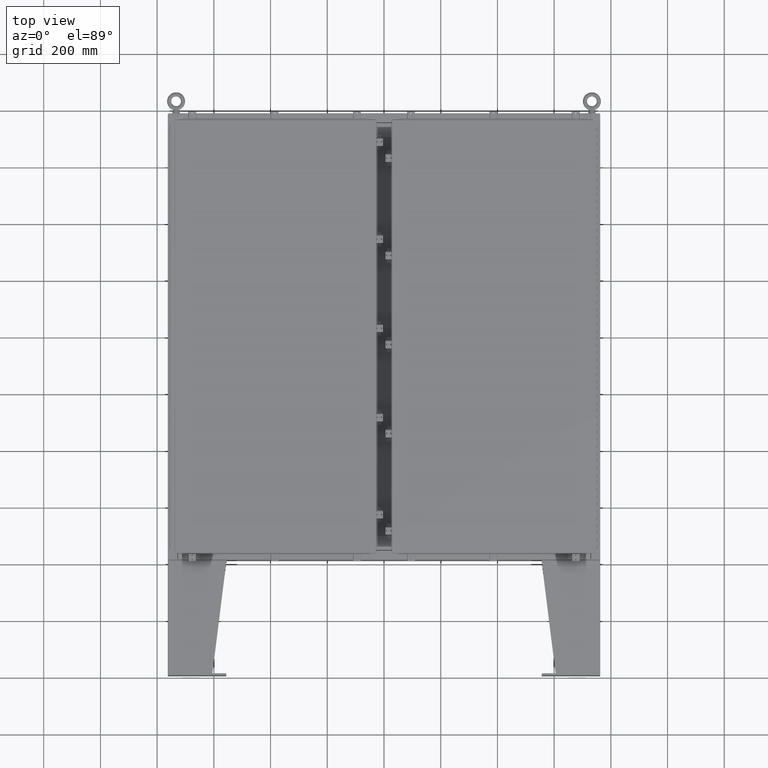
[diagram: clean part render]
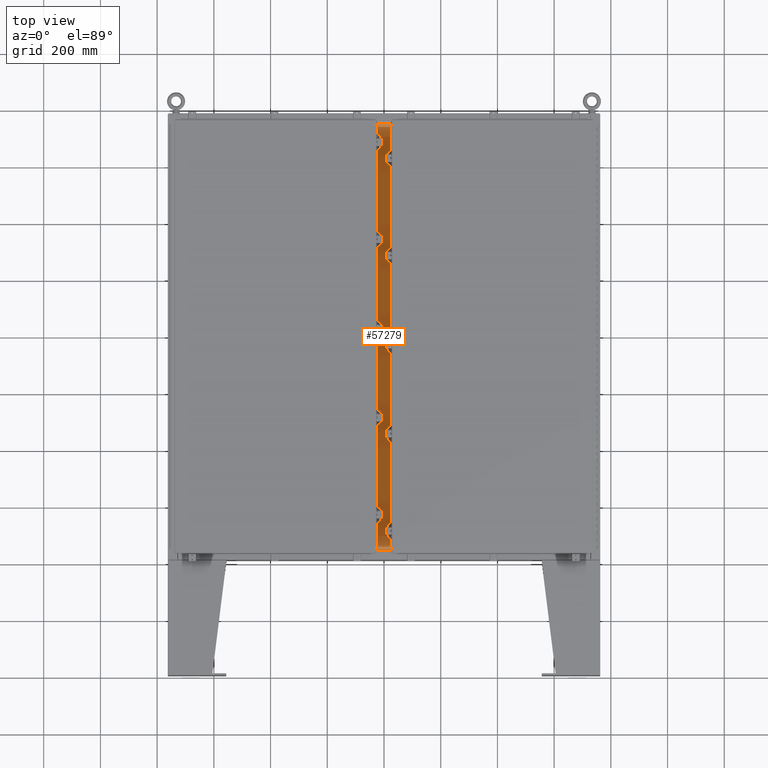
[diagram: same view with one face highlighted and labeled with its STEP entity id]
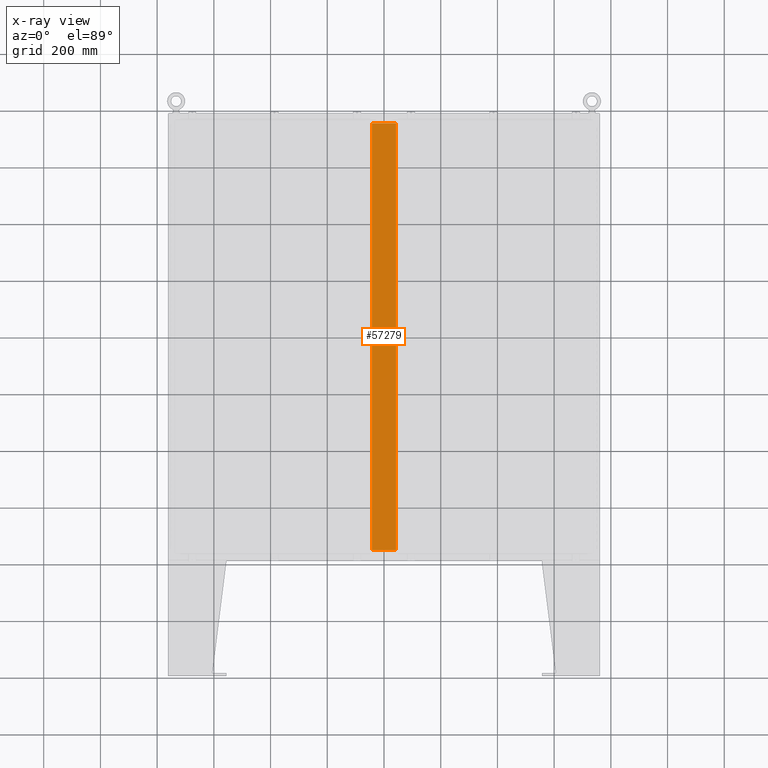
[diagram: x-ray of the same camera — body ghosted, the highlighted face saturated]
A machine part, top view. The second image highlights one B-rep face of the part: STEP entity #57279.
The next image is the same camera in x-ray: the body ghosted, the highlighted face saturated — about 0% of this face is hidden behind the body in this view.
In plain terms, the highlighted planar face has unit normal (0, 0, -1).
Its self-contained STEP definition (entity closure, byte-faithful):
#3152 = VECTOR ( 'NONE', #26682, 39.37007874015748100 ) ;
#8143 = VERTEX_POINT ( 'NONE', #69590 ) ;
#8176 = VERTEX_POINT ( 'NONE', #10544 ) ;
#10544 = CARTESIAN_POINT ( 'NONE',  ( -1.662299999999999700, -29.62500000000000000, -2.283654182203719900E-016 ) ) ;
#14833 = AXIS2_PLACEMENT_3D ( 'NONE', #35289, #30162, #67735 ) ;
#16802 = LINE ( 'NONE', #53361, #42072 ) ;
#18287 = LINE ( 'NONE', #24698, #52804 ) ;
#18306 = ORIENTED_EDGE ( 'NONE', *, *, #19350, .F. ) ;
#19350 = EDGE_CURVE ( 'NONE', #8176, #27962, #57007, .T. ) ;
#19545 = ORIENTED_EDGE ( 'NONE', *, *, #62256, .T. ) ;
#24698 = CARTESIAN_POINT ( 'NONE',  ( 1.662300000000000100, 29.62500000000000000, 4.481938114605432000E-017 ) ) ;
#25711 = CARTESIAN_POINT ( 'NONE',  ( -1.749999999999999600, -29.62500000000000000, 0.0000000000000000000 ) ) ;
#26682 = DIRECTION ( 'NONE',  ( -0.0000000000000000000, 1.000000000000000000, -0.0000000000000000000 ) ) ;
#27962 = VERTEX_POINT ( 'NONE', #52010 ) ;
#30162 = DIRECTION ( 'NONE',  ( 0.0000000000000000000, 0.0000000000000000000, -1.000000000000000000 ) ) ;
#30271 = FACE_OUTER_BOUND ( 'NONE', #42699, .T. ) ;
#31737 = ORIENTED_EDGE ( 'NONE', *, *, #60730, .F. ) ;
#35289 = CARTESIAN_POINT ( 'NONE',  ( 1.750000000000000200, 29.62500000000000000, 0.0000000000000000000 ) ) ;
#35734 = LINE ( 'NONE', #25711, #64366 ) ;
#38526 = VERTEX_POINT ( 'NONE', #51305 ) ;
#42072 = VECTOR ( 'NONE', #58788, 39.37007874015748100 ) ;
#42699 = EDGE_LOOP ( 'NONE', ( #18306, #48883, #31737, #19545 ) ) ;
#46106 = PLANE ( 'NONE',  #14833 ) ;
#47430 = EDGE_CURVE ( 'NONE', #8176, #8143, #35734, .T. ) ;
#48883 = ORIENTED_EDGE ( 'NONE', *, *, #47430, .T. ) ;
#51305 = CARTESIAN_POINT ( 'NONE',  ( 1.662300000000000100, 29.62500000000000000, 4.481938114605432000E-017 ) ) ;
#52010 = CARTESIAN_POINT ( 'NONE',  ( -1.662299999999999700, 29.62500000000000000, -2.283654182203719900E-016 ) ) ;
#52804 = VECTOR ( 'NONE', #67499, 39.37007874015748100 ) ;
#53361 = CARTESIAN_POINT ( 'NONE',  ( -1.749999999999999600, 29.62500000000000000, 0.0000000000000000000 ) ) ;
#57007 = LINE ( 'NONE', #58934, #3152 ) ;
#57279 = ADVANCED_FACE ( 'NONE', ( #30271 ), #46106, .F. ) ;
#57968 = DIRECTION ( 'NONE',  ( 1.000000000000000000, 0.0000000000000000000, 0.0000000000000000000 ) ) ;
#58788 = DIRECTION ( 'NONE',  ( -1.000000000000000000, -0.0000000000000000000, -0.0000000000000000000 ) ) ;
#58934 = CARTESIAN_POINT ( 'NONE',  ( -1.662299999999999700, -29.62500000000000000, -2.283654182203719900E-016 ) ) ;
#60730 = EDGE_CURVE ( 'NONE', #38526, #8143, #18287, .T. ) ;
#62256 = EDGE_CURVE ( 'NONE', #38526, #27962, #16802, .T. ) ;
#64366 = VECTOR ( 'NONE', #57968, 39.37007874015748100 ) ;
#67499 = DIRECTION ( 'NONE',  ( -0.0000000000000000000, -1.000000000000000000, -0.0000000000000000000 ) ) ;
#67735 = DIRECTION ( 'NONE',  ( -1.000000000000000000, 0.0000000000000000000, -0.0000000000000000000 ) ) ;
#69590 = CARTESIAN_POINT ( 'NONE',  ( 1.662300000000000100, -29.62500000000000000, 4.481938114605432000E-017 ) ) ;